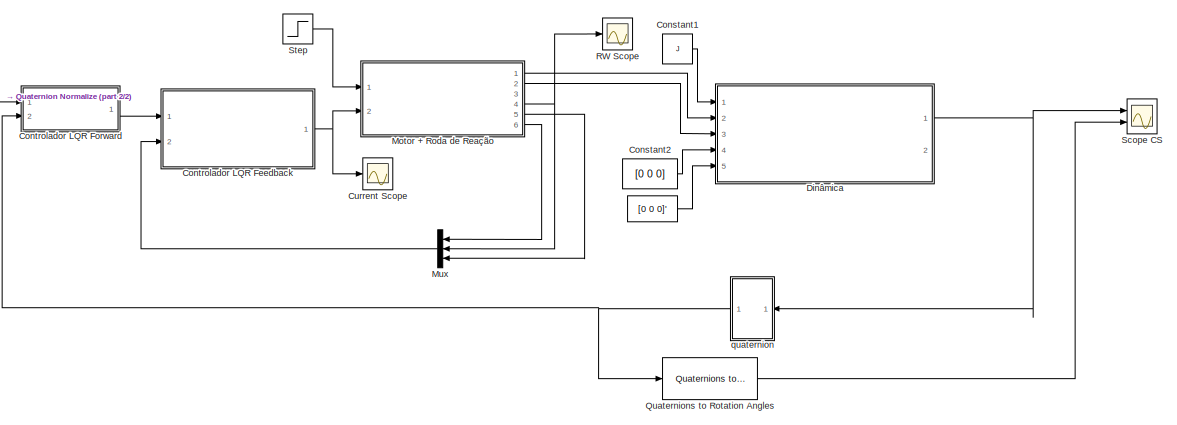
[diagram: root canvas - part 1/2, most of the canvas]
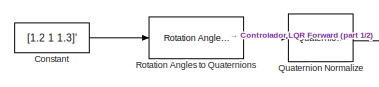
[diagram: root canvas - part 2/2, top left region]
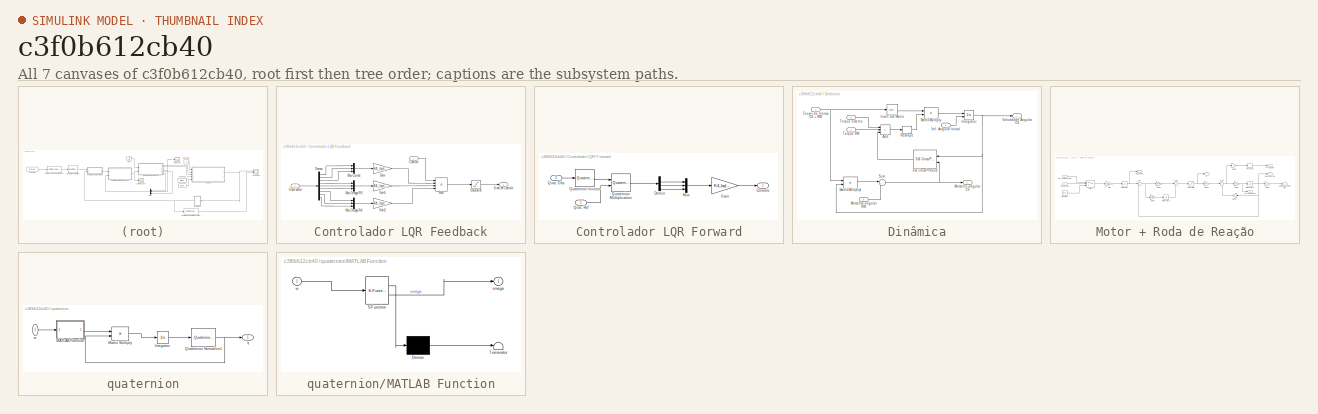
[diagram: thumbnail index - all 7 canvases of the model, root first then tree order]
MODEL slx_c3f0b612cb40
KIND model
CONFIG AbsTol = auto
CONFIG EnableMultiTasking = off
CONFIG FixedStep = auto
CONFIG MaxStep = 0.4
CONFIG MinStep = auto
CONFIG RelTol = 1e-3
CONFIG SampleTimeConstraint = Unconstrained
CONFIG SolverName = ode45
CONFIG StartTime = 0.0
CONFIG StopTime = 100
BLOCK [Constant]  
  Value = [0 0 0]'
BLOCK [Constant] Constant
  Value = [1.2 1 1.3]'
BLOCK [Constant] Constant1
  Value = J
BLOCK [Constant] Constant2
  Value = [0 0 0]
BLOCK [SubSystem] Controlador LQR Feedback
  Ports = [2, 1]
  RequestExecContextInheritance = off
BLOCK [Sum] Controlador LQR Feedback/Add
  IconShape = rectangular
  Inputs = +---
  Ports = [4, 1]
BLOCK [Inport] Controlador LQR Feedback/Controle
BLOCK [Demux] Controlador LQR Feedback/Demux
  Outputs = 9
  Ports = [1, 9]
BLOCK [Gain] Controlador LQR Feedback/Gain
  Gain = K4_lqr(1)
BLOCK [Gain] Controlador LQR Feedback/Gain1
  Gain = K4_lqr(2)
BLOCK [Gain] Controlador LQR Feedback/Gain2
  Gain = K4_lqr(3)
BLOCK [Mux] Controlador LQR Feedback/Mux Current
  DisplayOption = bar
  Inputs = 3
  Ports = [3, 1]
BLOCK [Mux] Controlador LQR Feedback/Mux Omega RR
  DisplayOption = bar
  Inputs = 3
  Ports = [3, 1]
BLOCK [Mux] Controlador LQR Feedback/Mux Omega Ref
  DisplayOption = bar
  Inputs = 3
  Ports = [3, 1]
BLOCK [Saturate] Controlador LQR Feedback/Saturation
  LowerLimit = -100
  UpperLimit = 100
BLOCK [Outport] Controlador LQR Feedback/Sinal de Controle
BLOCK [Inport] Controlador LQR Feedback/State vector
  Port = 2
BLOCK [SubSystem] Controlador LQR Forward
  Ports = [2, 1]
  RequestExecContextInheritance = off
BLOCK [Outport] Controlador LQR Forward/Controle
BLOCK [Demux] Controlador LQR Forward/Demux
  Ports = [1, 4]
BLOCK [Gain] Controlador LQR Forward/Gain
  Gain = K4_lqr(4)
BLOCK [Mux] Controlador LQR Forward/Mux
  DisplayOption = bar
  Inputs = 3
  Ports = [3, 1]
BLOCK [Inport] Controlador LQR Forward/Quat. Obs
  Port = 2
BLOCK [Inport] Controlador LQR Forward/Quat. Ref
BLOCK [Reference] Controlador LQR Forward/Quaternion Inverse  REF=aerolibutil/Quaternion
Inverse
  Ports = [1, 1]
  SourceBlock = aerolibutil/Quaternion\nInverse
  SourceProductBaseCode = AE
  SourceType = Quaternion Inverse
BLOCK [Reference] Controlador LQR Forward/Quaternion Multiplication  REF=aerolibutil/Quaternion
Multiplication
  Ports = [2, 1]
  SourceBlock = aerolibutil/Quaternion\nMultiplication
  SourceProductBaseCode = AE
  SourceType = Quaternion Multiplication
BLOCK [Scope] Current Scope
  Floating = off
  NumInputPorts = 1
  Ports = [1]
  ScopeSpecificationString = Simulink.scopes.TimeScopeBlockCfg('CurrentConfiguration', extmgr.ConfigurationSet(extmgr.Configuration('Core','General UI',true),extmgr.Configuration('Core','Source UI',true),extmgr.Configuration('Sources','WiredSimulink',true,'DataLoggingVariableName','ScopeData1'),extmgr.Configuration('Visuals','Time Domain',true,'SerializedDisplays',{struct('MinYLimReal','-0.56231','MaxYLimReal','0.0608','YLabe...<+1514ch>
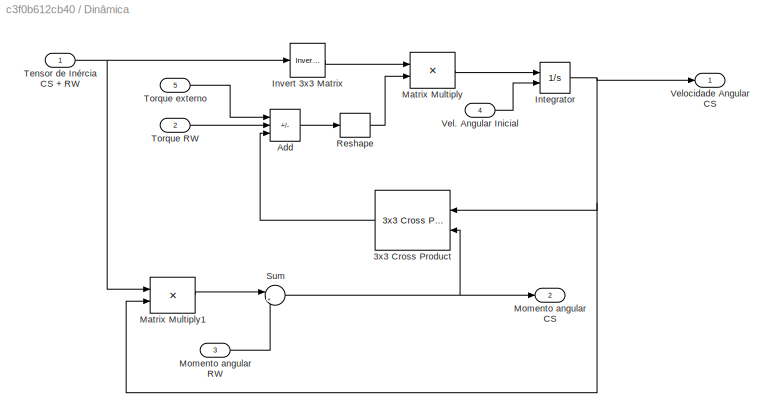
BLOCK [SubSystem] Dinâmica
  Ports = [5, 2]
  RequestExecContextInheritance = off
BLOCK [Reference] Dinâmica/3x3 Cross Product  REF=sharedutil/3x3 Cross Product
  NameLocation = top
  Ports = [2, 1]
  SourceBlock = sharedutil/3x3 Cross Product
  SourceProductBaseCode = AE,PW,DR,MT,UV,VE
  SourceType = CrossProduct
BLOCK [Sum] Dinâmica/Add
  IconShape = rectangular
  Inputs = +--
  Ports = [3, 1]
BLOCK [Integrator] Dinâmica/Integrator
  InitialConditionSource = external
  Ports = [2, 1]
BLOCK [Reference] Dinâmica/Invert 3x3 Matrix  REF=aerolibutil/Invert 
3x3 Matrix
  Ports = [1, 1]
  SourceBlock = aerolibutil/Invert \n3x3 Matrix
  SourceProductBaseCode = AE
  SourceType = Invert 3x3 Matrix
BLOCK [Product] Dinâmica/Matrix Multiply
  Multiplication = Matrix(*)
  Ports = [2, 1]
BLOCK [Product] Dinâmica/Matrix Multiply1
  Multiplication = Matrix(*)
  Ports = [2, 1]
BLOCK [Outport] Dinâmica/Momento angular CS
  Port = 2
BLOCK [Inport] Dinâmica/Momento angular RW
  Port = 3
BLOCK [Reshape] Dinâmica/Reshape
  OutputDimensionality = Column vector (2-D)
  Ports = [1, 1]
BLOCK [Sum] Dinâmica/Sum
  Inputs = |++
  Ports = [2, 1]
BLOCK [Inport] Dinâmica/Tensor de Inércia CS + RW
BLOCK [Inport] Dinâmica/Torque RW
  Port = 2
BLOCK [Inport] Dinâmica/Torque externo
  Port = 5
BLOCK [Inport] Dinâmica/Vel. Angular Inicial
  Port = 4
BLOCK [Outport] Dinâmica/Velocidade Angular CS
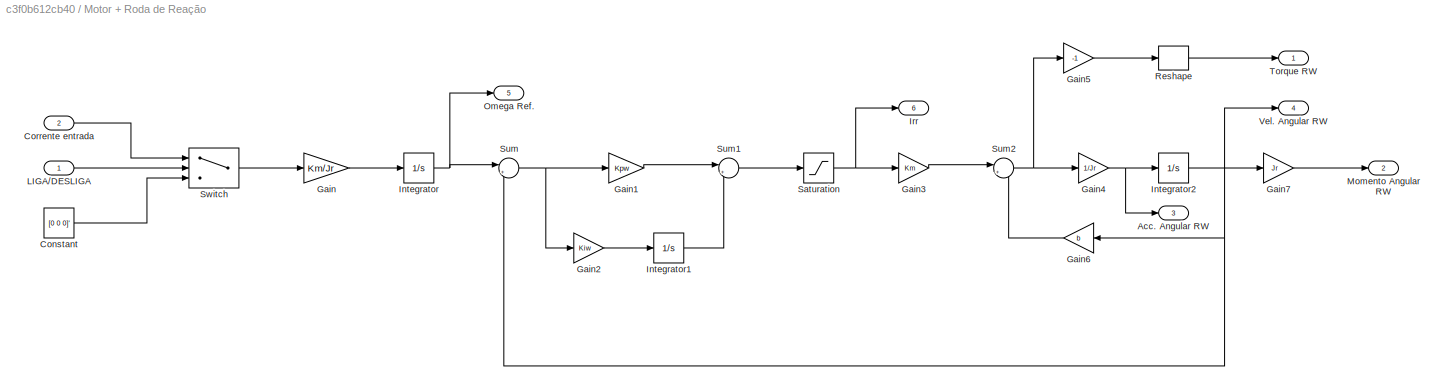
BLOCK [SubSystem] Motor + Roda de Reação
  Ports = [2, 6]
  RequestExecContextInheritance = off
BLOCK [Outport] Motor + Roda de Reação/Acc. Angular RW
  Port = 3
BLOCK [Constant] Motor + Roda de Reação/Constant
  Value = [0 0 0]'
BLOCK [Inport] Motor + Roda de Reação/Corrente entrada
  Port = 2
BLOCK [Gain] Motor + Roda de Reação/Gain
  Gain = Km/Jr
BLOCK [Gain] Motor + Roda de Reação/Gain1
  Gain = Kpw
BLOCK [Gain] Motor + Roda de Reação/Gain2
  Gain = Kiw
BLOCK [Gain] Motor + Roda de Reação/Gain3
  Gain = Km
BLOCK [Gain] Motor + Roda de Reação/Gain4
  Gain = 1/Jr
BLOCK [Gain] Motor + Roda de Reação/Gain5
  Gain = -1
BLOCK [Gain] Motor + Roda de Reação/Gain6
  Gain = b
  NameLocation = top
BLOCK [Gain] Motor + Roda de Reação/Gain7
  Gain = Jr
BLOCK [Integrator] Motor + Roda de Reação/Integrator
  Ports = [1, 1]
BLOCK [Integrator] Motor + Roda de Reação/Integrator1
  Ports = [1, 1]
BLOCK [Integrator] Motor + Roda de Reação/Integrator2
  Ports = [1, 1]
BLOCK [Outport] Motor + Roda de Reação/Irr
  Port = 6
BLOCK [Inport] Motor + Roda de Reação/LIGA//DESLIGA
BLOCK [Outport] Motor + Roda de Reação/Momento Angular RW
  Port = 2
BLOCK [Outport] Motor + Roda de Reação/Omega Ref.
  Port = 5
BLOCK [Reshape] Motor + Roda de Reação/Reshape
  OutputDimensionality = Column vector (2-D)
  Ports = [1, 1]
BLOCK [Saturate] Motor + Roda de Reação/Saturation
BLOCK [Sum] Motor + Roda de Reação/Sum
  Inputs = |+-
  Ports = [2, 1]
BLOCK [Sum] Motor + Roda de Reação/Sum1
  Inputs = |++
  Ports = [2, 1]
BLOCK [Sum] Motor + Roda de Reação/Sum2
  Inputs = |+-
  Ports = [2, 1]
BLOCK [Switch] Motor + Roda de Reação/Switch
  Criteria = u2 > Threshold
  InputSameDT = off
  SaturateOnIntegerOverflow = off
BLOCK [Outport] Motor + Roda de Reação/Torque RW
BLOCK [Outport] Motor + Roda de Reação/Vel. Angular RW
  Port = 4
BLOCK [Mux] Mux
  DisplayOption = bar
  Inputs = 3
  Ports = [3, 1]
BLOCK [Reference] Quaternion Normalize  REF=sharedutil/Quaternion
Normalize
  Ports = [1, 1]
  SourceBlock = sharedutil/Quaternion\nNormalize
  SourceProductBaseCode = AE,PW,DR,MT,UV,VE
  SourceType = Quaternion Normalize
BLOCK [Reference] Quaternions to Rotation Angles  REF=sharedtransform/Quaternions to Rotation Angles
  AttributesFormatString = Rotation Order: %<rotationOrder>
  Ports = [1, 1]
  SourceBlock = sharedtransform/Quaternions to Rotation Angles
  SourceProductBaseCode = AE,PW,DR,MT,UV,VE
  SourceType = Quat2Ang
BLOCK [Scope] RW Scope
  Floating = off
  NumInputPorts = 1
  Ports = [1]
  ScopeSpecificationString = Simulink.scopes.TimeScopeBlockCfg('CurrentConfiguration', extmgr.ConfigurationSet(extmgr.Configuration('Core','General UI',true),extmgr.Configuration('Core','Source UI',true),extmgr.Configuration('Sources','WiredSimulink',true,'DataLoggingVariableName','ScopeData2'),extmgr.Configuration('Visuals','Time Domain',true,'SerializedDisplays',{struct('MinYLimReal','-319.76744','MaxYLimReal','2877.90698',...<+1597ch>
BLOCK [Reference] Rotation Angles to Quaternions  REF=sharedtransform/Rotation Angles to Quaternions
  AttributesFormatString = Rotation Order: %<rotationOrder>
  Ports = [1, 1]
  SourceBlock = sharedtransform/Rotation Angles to Quaternions
  SourceProductBaseCode = AE,PW,DR,MT,UV,VE
  SourceType = Ang2Quat
BLOCK [Scope] Scope CS
  Floating = off
  NumInputPorts = 2
  Ports = [2]
  ScopeSpecificationString = Simulink.scopes.TimeScopeBlockCfg('CurrentConfiguration', extmgr.ConfigurationSet(extmgr.Configuration('Core','General UI',true),extmgr.Configuration('Core','Source UI',true),extmgr.Configuration('Sources','WiredSimulink',true),extmgr.Configuration('Visuals','Time Domain',true,'SerializedDisplays',{struct('MinYLimReal','-4.17513','MaxYLimReal','2.20479','YLabelReal','','MinYLimMag','0.00000','MaxY...<+1774ch>
BLOCK [Step] Step
  Before = 1
  SampleTime = 0
  Time = 100
BLOCK [SubSystem] quaternion
  NameLocation = top
  Ports = [1, 1]
  RequestExecContextInheritance = off
BLOCK [Integrator] quaternion/Integrator
  InitialCondition = [1 0 0 0]
  Ports = [1, 1]
BLOCK [SubSystem] quaternion/MATLAB Function
  ErrorFcn = Stateflow.Translate.translate
  PermitHierarchicalResolution = ExplicitOnly
  Ports = [1, 1]
  RequestExecContextInheritance = off
  SFBlockType = MATLAB Function
  TreatAsAtomicUnit = on
BLOCK [Demux] quaternion/MATLAB Function/ Demux 
  Outputs = 1
  Ports = [1, 1]
BLOCK [S-Function] quaternion/MATLAB Function/ SFunction 
  EnableBusSupport = on
  FunctionName = sf_sfun
  PortCounts = [1 2]
  Ports = [1, 2]
  SFcnIsStateOwnerBlock = off
  SFunctionDeploymentMode = off
  Tag = Stateflow S-Function 2
BLOCK [Terminator] quaternion/MATLAB Function/ Terminator 
BLOCK [Outport] quaternion/MATLAB Function/omega
BLOCK [Inport] quaternion/MATLAB Function/w
BLOCK [Product] quaternion/Matrix Multiply
  Multiplication = Matrix(*)
  Ports = [2, 1]
BLOCK [Reference] quaternion/Quaternion Normalize1  REF=sharedutil/Quaternion
Normalize
  NameLocation = top
  Ports = [1, 1]
  SourceBlock = sharedutil/Quaternion\nNormalize
  SourceProductBaseCode = AE,PW,DR,MT,UV,VE
  SourceType = Quaternion Normalize
BLOCK [Outport] quaternion/q
BLOCK [Inport] quaternion/w
  NameLocation = top
LINE  :1 -> Dinâmica:5
LINE Constant1:1 -> Dinâmica:1
LINE Constant2:1 -> Dinâmica:4
LINE Constant:1 -> Rotation Angles to Quaternions:1
LINE Controlador LQR Feedback/Add:1 -> Controlador LQR Feedback/Saturation:1
LINE Controlador LQR Feedback/Controle:1 -> Controlador LQR Feedback/Add:1
LINE Controlador LQR Feedback/Demux:1 -> Controlador LQR Feedback/Mux Current:1
LINE Controlador LQR Feedback/Demux:2 -> Controlador LQR Feedback/Mux Current:2
LINE Controlador LQR Feedback/Demux:3 -> Controlador LQR Feedback/Mux Current:3
LINE Controlador LQR Feedback/Demux:4 -> Controlador LQR Feedback/Mux Omega RR:1
LINE Controlador LQR Feedback/Demux:5 -> Controlador LQR Feedback/Mux Omega RR:2
LINE Controlador LQR Feedback/Demux:6 -> Controlador LQR Feedback/Mux Omega RR:3
LINE Controlador LQR Feedback/Demux:7 -> Controlador LQR Feedback/Mux Omega Ref:1
LINE Controlador LQR Feedback/Demux:8 -> Controlador LQR Feedback/Mux Omega Ref:2
LINE Controlador LQR Feedback/Demux:9 -> Controlador LQR Feedback/Mux Omega Ref:3
LINE Controlador LQR Feedback/Gain1:1 -> Controlador LQR Feedback/Add:3
LINE Controlador LQR Feedback/Gain2:1 -> Controlador LQR Feedback/Add:4
LINE Controlador LQR Feedback/Gain:1 -> Controlador LQR Feedback/Add:2
LINE Controlador LQR Feedback/Mux Current:1 -> Controlador LQR Feedback/Gain:1
LINE Controlador LQR Feedback/Mux Omega RR:1 -> Controlador LQR Feedback/Gain1:1
LINE Controlador LQR Feedback/Mux Omega Ref:1 -> Controlador LQR Feedback/Gain2:1
LINE Controlador LQR Feedback/Saturation:1 -> Controlador LQR Feedback/Sinal de Controle:1
LINE Controlador LQR Feedback/State vector:1 -> Controlador LQR Feedback/Demux:1
NET Controlador LQR Feedback:1 -> Current Scope:1, Motor + Roda de Reação:2
LINE Controlador LQR Forward/Demux:2 -> Controlador LQR Forward/Mux:1
LINE Controlador LQR Forward/Demux:3 -> Controlador LQR Forward/Mux:2
LINE Controlador LQR Forward/Demux:4 -> Controlador LQR Forward/Mux:3
LINE Controlador LQR Forward/Gain:1 -> Controlador LQR Forward/Controle:1
LINE Controlador LQR Forward/Mux:1 -> Controlador LQR Forward/Gain:1
LINE Controlador LQR Forward/Quat. Obs:1 -> Controlador LQR Forward/Quaternion Inverse:1
LINE Controlador LQR Forward/Quat. Ref:1 -> Controlador LQR Forward/Quaternion Multiplication:2
LINE Controlador LQR Forward/Quaternion Inverse:1 -> Controlador LQR Forward/Quaternion Multiplication:1
LINE Controlador LQR Forward/Quaternion Multiplication:1 -> Controlador LQR Forward/Demux:1
LINE Controlador LQR Forward:1 -> Controlador LQR Feedback:1
LINE Dinâmica/3x3 Cross Product:1 -> Dinâmica/Add:3
LINE Dinâmica/Add:1 -> Dinâmica/Reshape:1
NET Dinâmica/Integrator:1 -> Dinâmica/3x3 Cross Product:1, Dinâmica/Matrix Multiply1:2, Dinâmica/Velocidade Angular CS:1
LINE Dinâmica/Invert 3x3 Matrix:1 -> Dinâmica/Matrix Multiply:1
LINE Dinâmica/Matrix Multiply1:1 -> Dinâmica/Sum:1
LINE Dinâmica/Matrix Multiply:1 -> Dinâmica/Integrator:1
LINE Dinâmica/Momento angular RW:1 -> Dinâmica/Sum:2
LINE Dinâmica/Reshape:1 -> Dinâmica/Matrix Multiply:2
NET Dinâmica/Sum:1 -> Dinâmica/3x3 Cross Product:2, Dinâmica/Momento angular CS:1
NET Dinâmica/Tensor de Inércia CS + RW:1 -> Dinâmica/Invert 3x3 Matrix:1, Dinâmica/Matrix Multiply1:1
LINE Dinâmica/Torque RW:1 -> Dinâmica/Add:2
LINE Dinâmica/Torque externo:1 -> Dinâmica/Add:1
LINE Dinâmica/Vel. Angular Inicial:1 -> Dinâmica/Integrator:2
NET Dinâmica:1 -> Scope CS:1, quaternion:1
LINE Motor + Roda de Reação/Constant:1 -> Motor + Roda de Reação/Switch:3
LINE Motor + Roda de Reação/Corrente entrada:1 -> Motor + Roda de Reação/Switch:1
LINE Motor + Roda de Reação/Gain1:1 -> Motor + Roda de Reação/Sum1:1
LINE Motor + Roda de Reação/Gain2:1 -> Motor + Roda de Reação/Integrator1:1
LINE Motor + Roda de Reação/Gain3:1 -> Motor + Roda de Reação/Sum2:1
NET Motor + Roda de Reação/Gain4:1 -> Motor + Roda de Reação/Acc. Angular RW:1, Motor + Roda de Reação/Integrator2:1
LINE Motor + Roda de Reação/Gain5:1 -> Motor + Roda de Reação/Reshape:1
LINE Motor + Roda de Reação/Gain6:1 -> Motor + Roda de Reação/Sum2:2
LINE Motor + Roda de Reação/Gain7:1 -> Motor + Roda de Reação/Momento Angular RW:1
LINE Motor + Roda de Reação/Gain:1 -> Motor + Roda de Reação/Integrator:1
LINE Motor + Roda de Reação/Integrator1:1 -> Motor + Roda de Reação/Sum1:2
NET Motor + Roda de Reação/Integrator2:1 -> Motor + Roda de Reação/Gain6:1, Motor + Roda de Reação/Gain7:1, Motor + Roda de Reação/Sum:2, Motor + Roda de Reação/Vel. Angular RW:1
NET Motor + Roda de Reação/Integrator:1 -> Motor + Roda de Reação/Omega Ref.:1, Motor + Roda de Reação/Sum:1
LINE Motor + Roda de Reação/LIGA//DESLIGA:1 -> Motor + Roda de Reação/Switch:2
LINE Motor + Roda de Reação/Reshape:1 -> Motor + Roda de Reação/Torque RW:1
NET Motor + Roda de Reação/Saturation:1 -> Motor + Roda de Reação/Gain3:1, Motor + Roda de Reação/Irr:1
LINE Motor + Roda de Reação/Sum1:1 -> Motor + Roda de Reação/Saturation:1
NET Motor + Roda de Reação/Sum2:1 -> Motor + Roda de Reação/Gain4:1, Motor + Roda de Reação/Gain5:1
NET Motor + Roda de Reação/Sum:1 -> Motor + Roda de Reação/Gain1:1, Motor + Roda de Reação/Gain2:1
LINE Motor + Roda de Reação/Switch:1 -> Motor + Roda de Reação/Gain:1
LINE Motor + Roda de Reação:1 -> Dinâmica:2
LINE Motor + Roda de Reação:2 -> Dinâmica:3
NET Motor + Roda de Reação:4 -> Mux:2, RW Scope:1
LINE Motor + Roda de Reação:5 -> Mux:3
LINE Motor + Roda de Reação:6 -> Mux:1
LINE Mux:1 -> Controlador LQR Feedback:2
LINE Quaternion Normalize:1 -> Controlador LQR Forward:1
LINE Quaternions to Rotation Angles:1 -> Scope CS:2
LINE Rotation Angles to Quaternions:1 -> Quaternion Normalize:1
LINE Step:1 -> Motor + Roda de Reação:1
LINE quaternion/Integrator:1 -> quaternion/Quaternion Normalize1:1
LINE quaternion/MATLAB Function:1 -> quaternion/Matrix Multiply:1
LINE quaternion/Matrix Multiply:1 -> quaternion/Integrator:1
NET quaternion/Quaternion Normalize1:1 -> quaternion/Matrix Multiply:2, quaternion/q:1
LINE quaternion/w:1 -> quaternion/MATLAB Function:1
NET quaternion:1 -> Controlador LQR Forward:2, Quaternions to Rotation Angles:1
note: NET lines group one-source signal fan-out (src -> all destinations, sorted); 1:1 wires keep LINE
CHART quaternion/MATLAB Function states=1 transitions=1
  STATE_LABEL 'eML_blk_kernel()'
  STATE_LABEL 'SCRIPT:\nfunction omega = fcn(w)\n    wx = w(1);\n    wy = w(2);\n    wz = w(3);\n    res = [0 -wx -wy -wz;wx 0 wz -wy;wy -wz 0 wx;wz wy -wx 0];\nomega = res;\n'
CHART  states=0 transitions=0
